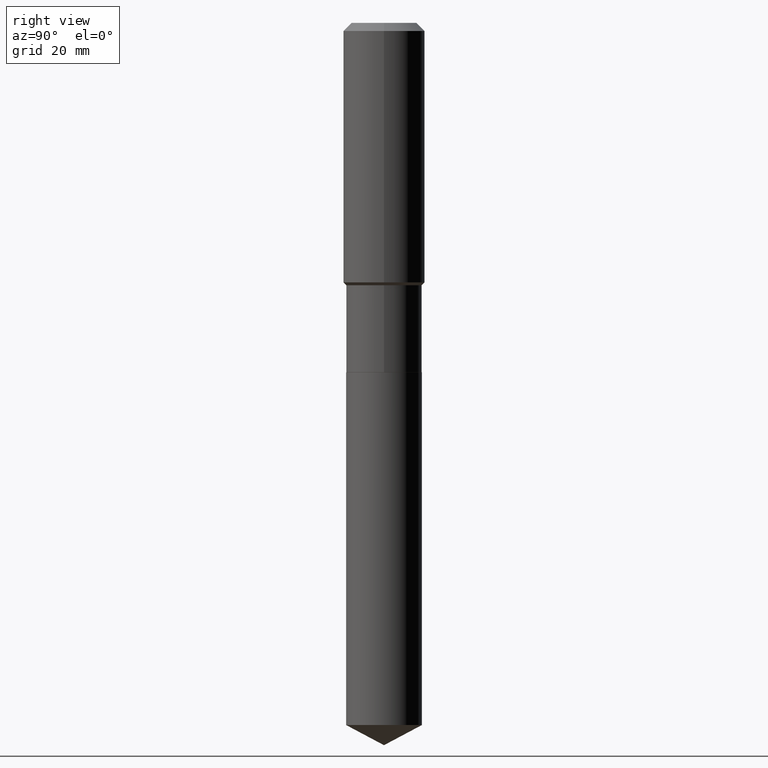
[diagram: clean part render]
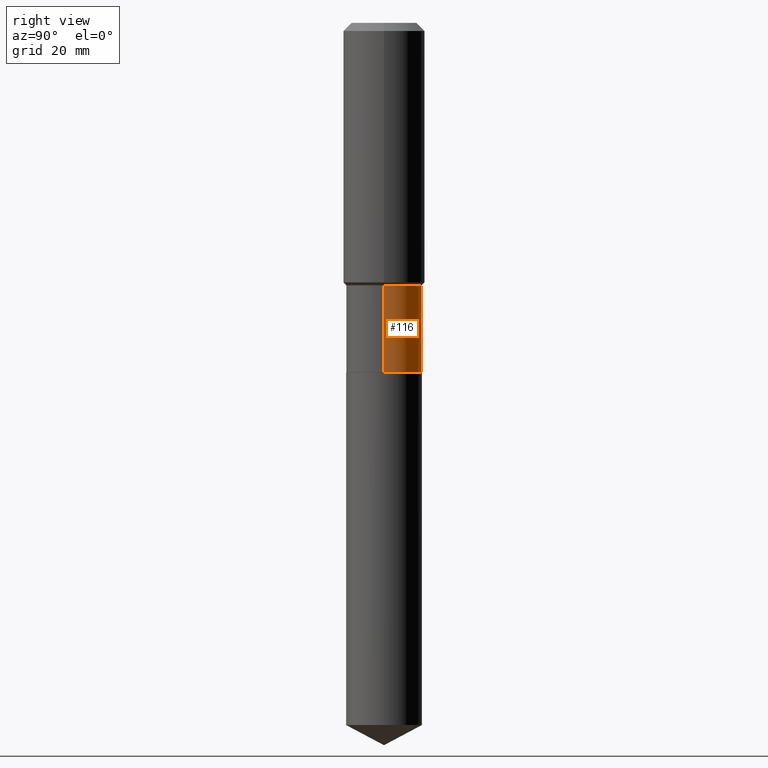
[diagram: same view with one face highlighted and labeled with its STEP entity id]
A machine part, right view. The second image highlights one B-rep face of the part: STEP entity #116.
In plain terms, the highlighted cylindrical surface (partial cylindrical patch) has radius 6.4999 mm, axis along (-0, 0, 1).
Its self-contained STEP definition (entity closure, byte-faithful):
#3 = AXIS2_PLACEMENT_3D ( 'NONE', #404, #211, #219 ) ;
#22 = EDGE_LOOP ( 'NONE', ( #63, #154, #215, #463 ) ) ;
#27 = VERTEX_POINT ( 'NONE', #142 ) ;
#34 = CARTESIAN_POINT ( 'NONE',  ( -0.2559000000000000163, 1.818278860810096492E-15, -1.258755489596230312E-29 ) ) ;
#44 = CIRCLE ( 'NONE', #289, 0.2558999999999999608 ) ;
#55 = EDGE_CURVE ( 'NONE', #122, #206, #118, .T. ) ;
#63 = ORIENTED_EDGE ( 'NONE', *, *, #55, .T. ) ;
#72 = FACE_OUTER_BOUND ( 'NONE', #22, .T. ) ;
#75 = EDGE_CURVE ( 'NONE', #206, #27, #331, .T. ) ;
#78 = VERTEX_POINT ( 'NONE', #182 ) ;
#89 = AXIS2_PLACEMENT_3D ( 'NONE', #293, #287, #299 ) ;
#105 = DIRECTION ( 'NONE',  ( -2.445468806185136877E-29, 3.491481338843145188E-15, 1.000000000000000000 ) ) ;
#106 = VECTOR ( 'NONE', #105, 39.37007874015748143 ) ;
#112 = CARTESIAN_POINT ( 'NONE',  ( -0.2559000000000000719, -5.400882529448933178E-15, -2.361699999999999910 ) ) ;
#116 = ADVANCED_FACE ( 'NONE', ( #72 ), #372, .T. ) ;
#118 = CIRCLE ( 'NONE', #89, 0.2559000000000000163 ) ;
#122 = VERTEX_POINT ( 'NONE', #333 ) ;
#124 = DIRECTION ( 'NONE',  ( -2.445468806185136597E-29, 3.491481338843145583E-15, 1.000000000000000000 ) ) ;
#142 = CARTESIAN_POINT ( 'NONE',  ( -0.2558999999999999608, -5.400882529448933178E-15, -1.773599999999999843 ) ) ;
#154 = ORIENTED_EDGE ( 'NONE', *, *, #75, .T. ) ;
#163 = CARTESIAN_POINT ( 'NONE',  ( 0.2559000000000000163, -1.786940149219915740E-15, 1.247813636926179898E-29 ) ) ;
#182 = CARTESIAN_POINT ( 'NONE',  ( 0.2558999999999999608, -7.979431451792117746E-15, -1.773599999999999843 ) ) ;
#206 = VERTEX_POINT ( 'NONE', #112 ) ;
#211 = DIRECTION ( 'NONE',  ( -2.445468806185136597E-29, 3.491481338843145583E-15, 1.000000000000000000 ) ) ;
#215 = ORIENTED_EDGE ( 'NONE', *, *, #476, .F. ) ;
#219 = DIRECTION ( 'NONE',  ( 1.000000000000000000, -6.982962677686266711E-15, 4.876176775795935232E-29 ) ) ;
#238 = DIRECTION ( 'NONE',  ( -2.445468806185136877E-29, 3.491481338843145188E-15, 1.000000000000000000 ) ) ;
#273 = DIRECTION ( 'NONE',  ( 1.000000000000000000, -6.982962677686266711E-15, 0.000000000000000000 ) ) ;
#287 = DIRECTION ( 'NONE',  ( -2.445468806185136597E-29, 3.491481338843145583E-15, 1.000000000000000000 ) ) ;
#289 = AXIS2_PLACEMENT_3D ( 'NONE', #464, #124, #273 ) ;
#293 = CARTESIAN_POINT ( 'NONE',  ( 5.775463679567436952E-29, -8.245831477945857334E-15, -2.361699999999999910 ) ) ;
#299 = DIRECTION ( 'NONE',  ( 1.000000000000000000, -6.982962677686269866E-15, 0.000000000000000000 ) ) ;
#317 = LINE ( 'NONE', #163, #328 ) ;
#328 = VECTOR ( 'NONE', #238, 39.37007874015748143 ) ;
#331 = LINE ( 'NONE', #34, #106 ) ;
#333 = CARTESIAN_POINT ( 'NONE',  ( 0.2559000000000000163, -1.003277162716577307E-14, -2.361699999999999910 ) ) ;
#372 = CYLINDRICAL_SURFACE ( 'NONE', #3, 0.2559000000000000163 ) ;
#404 = CARTESIAN_POINT ( 'NONE',  ( 0.000000000000000000, 0.000000000000000000, 0.000000000000000000 ) ) ;
#463 = ORIENTED_EDGE ( 'NONE', *, *, #467, .F. ) ;
#464 = CARTESIAN_POINT ( 'NONE',  ( 4.337283474649957727E-29, -6.192491302572202795E-15, -1.773599999999999843 ) ) ;
#467 = EDGE_CURVE ( 'NONE', #122, #78, #317, .T. ) ;
#476 = EDGE_CURVE ( 'NONE', #78, #27, #44, .T. ) ;